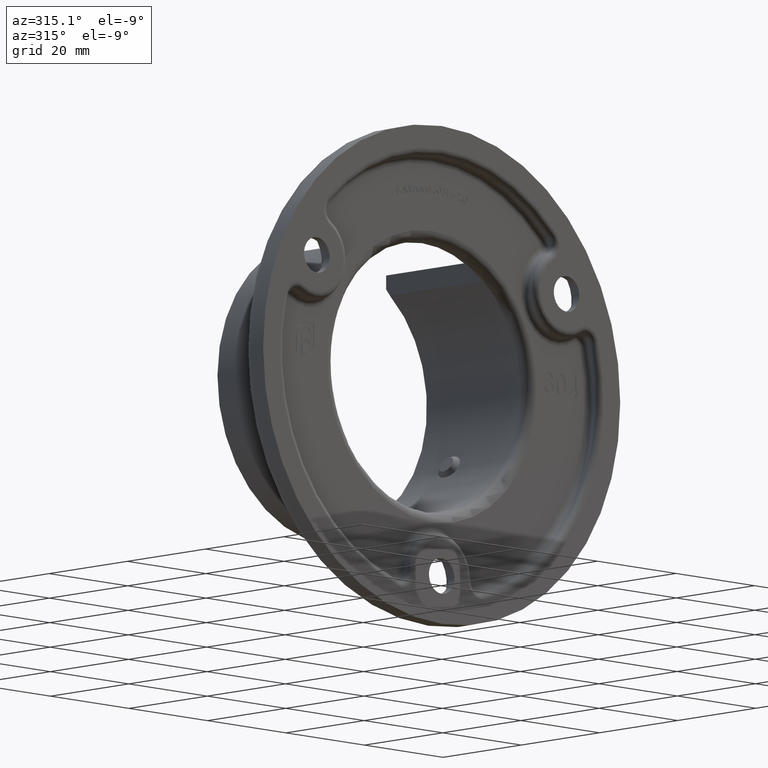
[diagram: clean part render]
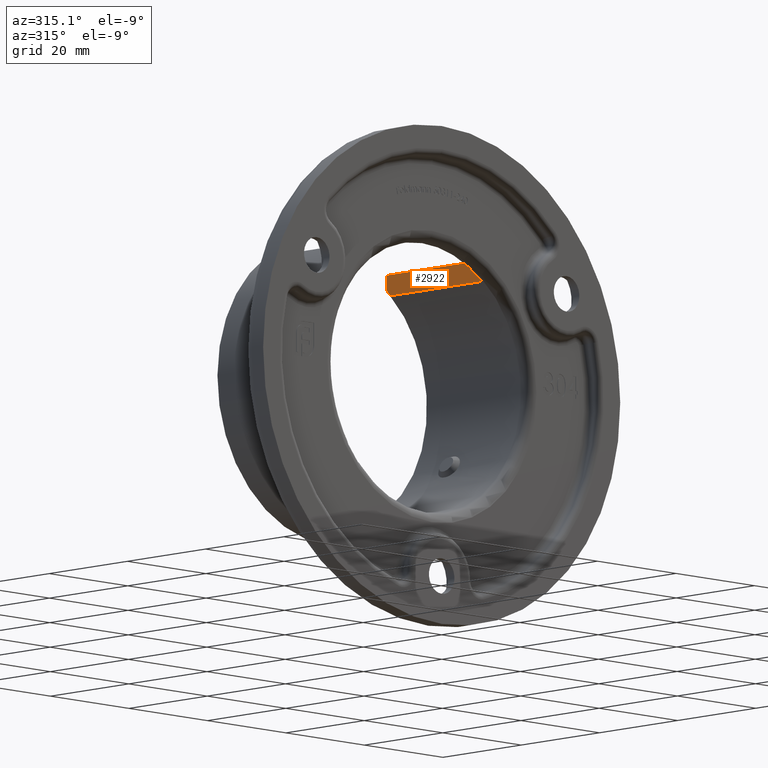
[diagram: same view with one face highlighted and labeled with its STEP entity id]
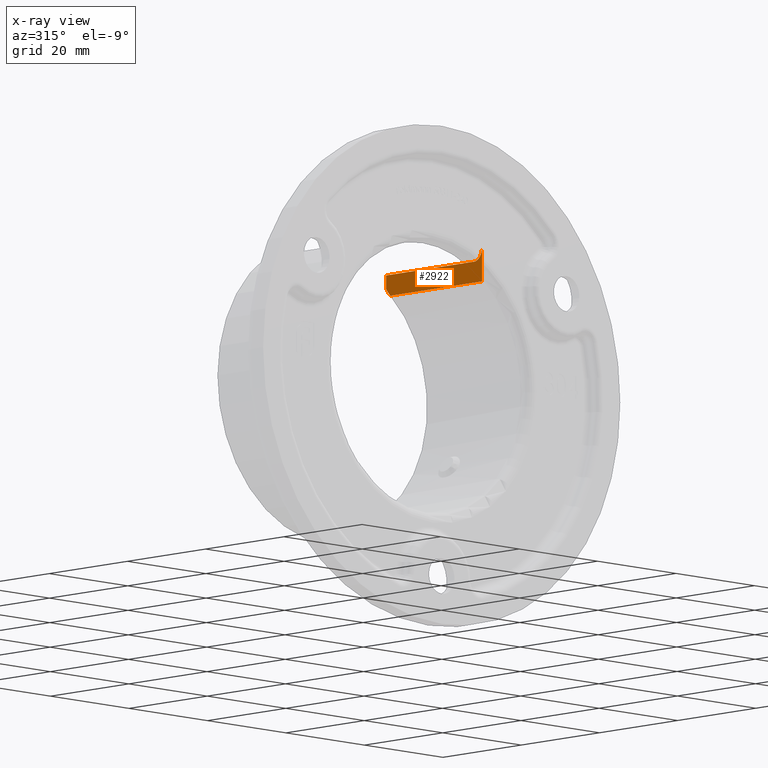
[diagram: x-ray of the same camera — body ghosted, the highlighted face saturated]
A machine part, auxiliary view. The second image highlights one B-rep face of the part: STEP entity #2922.
The next image is the same camera in x-ray: the body ghosted, the highlighted face saturated — about 0% of this face is hidden behind the body in this view.
In plain terms, the highlighted planar face has unit normal (1, 0, 0).
Its self-contained STEP definition (entity closure, byte-faithful):
#249 = CARTESIAN_POINT ( 'NONE',  ( 15.25000000000000000, 28.50000000000002132, 19.36646586241278811 ) ) ;
#696 = EDGE_CURVE ( 'NONE', #7359, #12698, #3189, .T. ) ;
#707 = LINE ( 'NONE', #16797, #14112 ) ;
#827 = CARTESIAN_POINT ( 'NONE',  ( 15.25000000000000000, 29.50000000000000355, 19.36646586241278811 ) ) ;
#844 = VERTEX_POINT ( 'NONE', #12079 ) ;
#960 = DIRECTION ( 'NONE',  ( -0.000000000000000000, -0.000000000000000000, -1.000000000000000000 ) ) ;
#1136 = VERTEX_POINT ( 'NONE', #13674 ) ;
#1785 = EDGE_LOOP ( 'NONE', ( #11041, #19765, #16327, #13940, #9141, #18257 ) ) ;
#1977 = CARTESIAN_POINT ( 'NONE',  ( 15.24999999999999822, 5.931972343037122286, 23.54686196170826307 ) ) ;
#2536 = CARTESIAN_POINT ( 'NONE',  ( 15.25000000000000000, 7.000000000000002665, 23.18404623873925985 ) ) ;
#2587 = DIRECTION ( 'NONE',  ( 1.000000000000000000, 0.000000000000000000, -0.000000000000000000 ) ) ;
#2717 = DIRECTION ( 'NONE',  ( -0.000000000000000000, 0.000000000000000000, -1.000000000000000000 ) ) ;
#2749 = B_SPLINE_CURVE_WITH_KNOTS ( 'NONE', 3,
 ( #18267, #18339, #3888, #15186, #16775, #7124, #8409, #19686, #11649, #1977, #18688, #10581, #18618, #8744, #20240, #2536 ),
 .UNSPECIFIED., .F., .F.,
 ( 4, 2, 2, 2, 2, 2, 2, 4 ),
 ( 0.000000000000000000, 0.0008487772695970347957, 0.001273165904395557073, 0.001697554539194079349, 0.002121943173992601843, 0.002546331808791123686, 0.002970720443589646396, 0.003395109078388168673 ),
 .UNSPECIFIED. ) ;
#2775 = LINE ( 'NONE', #6383, #8335 ) ;
#2922 = ADVANCED_FACE ( 'NONE', ( #18036 ), #15569, .F. ) ;
#3189 = B_SPLINE_CURVE_WITH_KNOTS ( 'NONE', 3,
 ( #18631, #12338, #15467, #6475 ),
 .UNSPECIFIED., .F., .F.,
 ( 4, 4 ),
 ( 0.000000000000000000, 0.001606872726927554684 ),
 .UNSPECIFIED. ) ;
#3671 = DIRECTION ( 'NONE',  ( 0.000000000000000000, -0.000000000000000000, 1.000000000000000000 ) ) ;
#3888 = CARTESIAN_POINT ( 'NONE',  ( 15.25000000000000000, 5.044345218816555843, 24.97643597058785758 ) ) ;
#4551 = EDGE_CURVE ( 'NONE', #16346, #1136, #2749, .T. ) ;
#5541 = LINE ( 'NONE', #827, #16387 ) ;
#5622 = AXIS2_PLACEMENT_3D ( 'NONE', #10773, #2587, #2717 ) ;
#6383 = CARTESIAN_POINT ( 'NONE',  ( 15.25000000000000000, -26.63121313886159314, 23.18404623873925985 ) ) ;
#6475 = CARTESIAN_POINT ( 'NONE',  ( 15.25000000000000000, 28.50000000000002132, 19.36646586241278811 ) ) ;
#6878 = DIRECTION ( 'NONE',  ( -0.000000000000000000, 1.000000000000000000, -0.000000000000000000 ) ) ;
#7124 = CARTESIAN_POINT ( 'NONE',  ( 15.25000000000000000, 5.365406396996300842, 24.18415899630940302 ) ) ;
#7359 = VERTEX_POINT ( 'NONE', #17188 ) ;
#7888 = EDGE_CURVE ( 'NONE', #1136, #844, #2775, .T. ) ;
#8278 = LINE ( 'NONE', #16302, #20898 ) ;
#8308 = EDGE_CURVE ( 'NONE', #844, #7359, #5541, .T. ) ;
#8335 = VECTOR ( 'NONE', #16391, 1000.000000000000000 ) ;
#8409 = CARTESIAN_POINT ( 'NONE',  ( 15.25000000000000533, 5.441612663726750121, 24.06473295157199388 ) ) ;
#8744 = CARTESIAN_POINT ( 'NONE',  ( 15.24999999999999822, 6.711067216170368610, 23.20317747636647354 ) ) ;
#9080 = EDGE_CURVE ( 'NONE', #18939, #12698, #707, .T. ) ;
#9141 = ORIENTED_EDGE ( 'NONE', *, *, #4551, .T. ) ;
#9605 = EDGE_CURVE ( 'NONE', #18939, #16346, #8278, .T. ) ;
#10581 = CARTESIAN_POINT ( 'NONE',  ( 15.25000000000000000, 6.302649194076419548, 23.32798764088878585 ) ) ;
#10773 = CARTESIAN_POINT ( 'NONE',  ( 15.25000000000000000, -26.63121313886159314, 19.36646586241278811 ) ) ;
#11041 = ORIENTED_EDGE ( 'NONE', *, *, #8308, .T. ) ;
#11649 = CARTESIAN_POINT ( 'NONE',  ( 15.25000000000000533, 5.715897944451512558, 23.73379905131184131 ) ) ;
#12079 = CARTESIAN_POINT ( 'NONE',  ( 15.25000000000000000, 29.50000000000000355, 23.18404623873925985 ) ) ;
#12338 = CARTESIAN_POINT ( 'NONE',  ( 15.25000000000000000, 29.16436465827618463, 20.20683422052802314 ) ) ;
#12698 = VERTEX_POINT ( 'NONE', #249 ) ;
#13674 = CARTESIAN_POINT ( 'NONE',  ( 15.25000000000000000, 7.000000000000002665, 23.18404623873925985 ) ) ;
#13940 = ORIENTED_EDGE ( 'NONE', *, *, #9605, .T. ) ;
#14112 = VECTOR ( 'NONE', #6878, 1000.000000000000000 ) ;
#15186 = CARTESIAN_POINT ( 'NONE',  ( 15.25000000000000000, 5.177228362688963692, 24.56978464625902348 ) ) ;
#15467 = CARTESIAN_POINT ( 'NONE',  ( 15.25000000000000000, 28.83090550220212123, 19.78764857521289855 ) ) ;
#15569 = PLANE ( 'NONE',  #5622 ) ;
#15759 = CARTESIAN_POINT ( 'NONE',  ( 15.25000000000000000, 5.000000000000000888, 19.36646586241278811 ) ) ;
#16302 = CARTESIAN_POINT ( 'NONE',  ( 15.25000000000000000, 5.000000000000000888, 19.36646586241278811 ) ) ;
#16327 = ORIENTED_EDGE ( 'NONE', *, *, #9080, .F. ) ;
#16346 = VERTEX_POINT ( 'NONE', #16647 ) ;
#16387 = VECTOR ( 'NONE', #960, 1000.000000000000000 ) ;
#16391 = DIRECTION ( 'NONE',  ( -0.000000000000000000, 1.000000000000000000, -0.000000000000000000 ) ) ;
#16647 = CARTESIAN_POINT ( 'NONE',  ( 15.25000000000000000, 5.000000000000000888, 25.54407954888960219 ) ) ;
#16775 = CARTESIAN_POINT ( 'NONE',  ( 15.25000000000000178, 5.233378889096319320, 24.43596618162203882 ) ) ;
#16797 = CARTESIAN_POINT ( 'NONE',  ( 15.25000000000000000, -26.63121313886159314, 19.36646586241278811 ) ) ;
#17188 = CARTESIAN_POINT ( 'NONE',  ( 15.25000000000000000, 29.50000000000000355, 20.62425756239479568 ) ) ;
#18036 = FACE_OUTER_BOUND ( 'NONE', #1785, .T. ) ;
#18257 = ORIENTED_EDGE ( 'NONE', *, *, #7888, .T. ) ;
#18267 = CARTESIAN_POINT ( 'NONE',  ( 15.25000000000000000, 5.000000000000000888, 25.54407954888960219 ) ) ;
#18339 = CARTESIAN_POINT ( 'NONE',  ( 15.25000000000000533, 4.999999999999999112, 25.25601096626369468 ) ) ;
#18618 = CARTESIAN_POINT ( 'NONE',  ( 15.25000000000000000, 6.435949949171047457, 23.27500112253697750 ) ) ;
#18631 = CARTESIAN_POINT ( 'NONE',  ( 15.25000000000000000, 29.50000000000000355, 20.62425756239479568 ) ) ;
#18688 = CARTESIAN_POINT ( 'NONE',  ( 15.25000000000000355, 6.048822197041892501, 23.46503845658301302 ) ) ;
#18939 = VERTEX_POINT ( 'NONE', #15759 ) ;
#19686 = CARTESIAN_POINT ( 'NONE',  ( 15.24999999999999645, 5.616227564696098185, 23.83999091548114180 ) ) ;
#19765 = ORIENTED_EDGE ( 'NONE', *, *, #696, .T. ) ;
#20240 = CARTESIAN_POINT ( 'NONE',  ( 15.25000000000000355, 6.855176180864576807, 23.18404623873925630 ) ) ;
#20898 = VECTOR ( 'NONE', #3671, 1000.000000000000000 ) ;